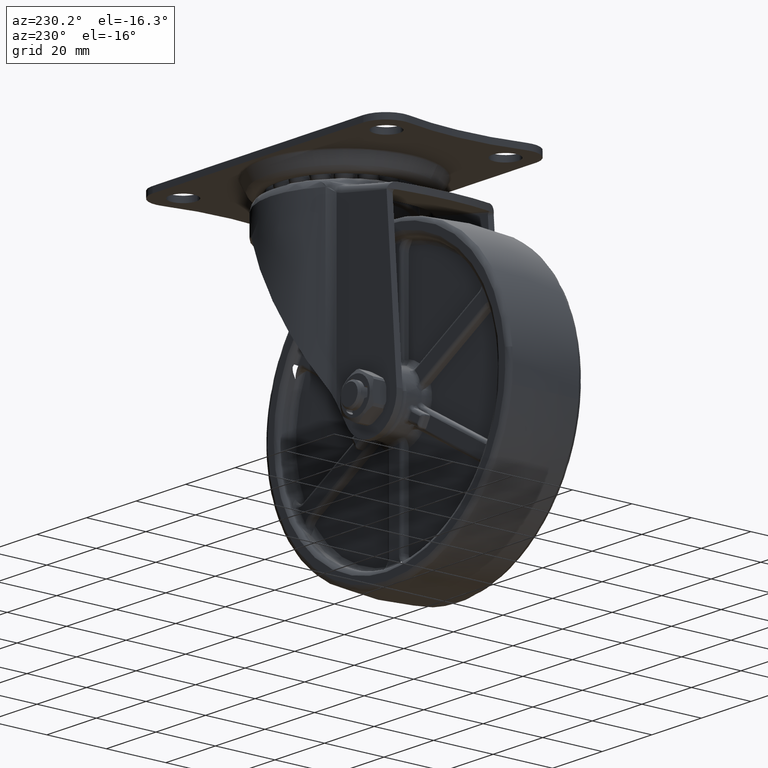
[diagram: clean part render]
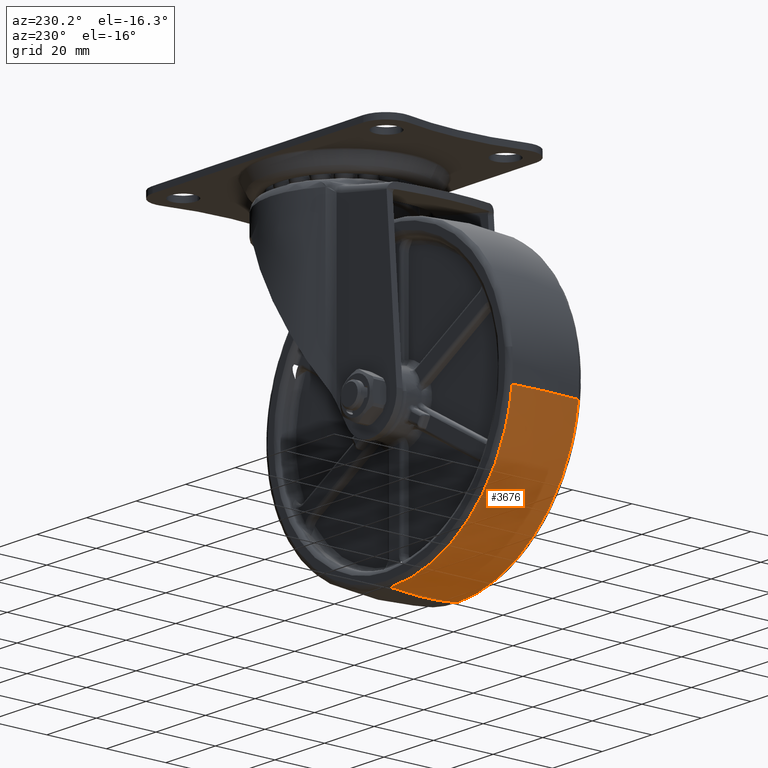
[diagram: same view with one face highlighted and labeled with its STEP entity id]
A machine part, auxiliary view. The second image highlights one B-rep face of the part: STEP entity #3676.
In plain terms, the highlighted face is a freeform B-spline surface patch.
Its self-contained STEP definition (entity closure, byte-faithful):
#2618=CARTESIAN_POINT('',(-32.0,11.167484830604160,-119.374480036664590));
#2619=VERTEX_POINT('',#2618);
#2633=CARTESIAN_POINT('',(-81.044247313738538,11.167491407916470,-75.700965824303069));
#2634=VERTEX_POINT('',#2633);
#2635=CARTESIAN_POINT('',(-32.0,11.167484830604160,-119.374480036664590));
#2636=CARTESIAN_POINT('',(-75.967581495189606,11.167488119260312,-119.374478609331600));
#2637=CARTESIAN_POINT('',(-81.044247313738538,11.167491407916467,-75.700965824303069));
#2645=(BOUNDED_CURVE()B_SPLINE_CURVE(2,(#2635,#2636,#2637),.UNSPECIFIED.,.F.,.U.)B_SPLINE_CURVE_WITH_KNOTS((3,3),(0.500000000000000,0.730000070278203),.UNSPECIFIED.)CURVE()GEOMETRIC_REPRESENTATION_ITEM()RATIONAL_B_SPLINE_CURVE((1.0,0.730538156355587,0.956886256515248))REPRESENTATION_ITEM(''));
#2646=EDGE_CURVE('',#2619,#2634,#2645,.T.);
#2823=CARTESIAN_POINT('',(-32.0,-11.167488677243210,-119.374479604382800));
#2824=VERTEX_POINT('',#2823);
#2930=CARTESIAN_POINT('',(-81.044249517506259,-11.167471308522110,-75.700966427871975));
#2931=VERTEX_POINT('',#2930);
#2947=CARTESIAN_POINT('',(-32.0,-11.167488677243210,-119.374479604382800));
#2948=CARTESIAN_POINT('',(-75.967582307638381,-11.167479992882660,-119.374478523590890));
#2949=CARTESIAN_POINT('',(-81.044249517506259,-11.167471308522110,-75.700966427871975));
#2957=(BOUNDED_CURVE()B_SPLINE_CURVE(2,(#2947,#2948,#2949),.UNSPECIFIED.,.F.,.U.)B_SPLINE_CURVE_WITH_KNOTS((3,3),(0.500000000000000,0.730000069095983),.UNSPECIFIED.)CURVE()GEOMETRIC_REPRESENTATION_ITEM()RATIONAL_B_SPLINE_CURVE((1.0,0.730538157740644,0.956886254188350))REPRESENTATION_ITEM(''));
#2958=EDGE_CURVE('',#2824,#2931,#2957,.T.);
#3608=CARTESIAN_POINT('',(-81.044247313738524,11.167491407916472,-75.700965824303069));
#3609=CARTESIAN_POINT('',(-81.665584297877444,5.601264237661876,-75.773191175565515));
#3610=CARTESIAN_POINT('',(-81.665584287883675,3.382763E-013,-75.773191261526193));
#3611=CARTESIAN_POINT('',(-81.665584277889963,-5.601254092977348,-75.773191347486716));
#3612=CARTESIAN_POINT('',(-81.044249517506259,-11.167471308522105,-75.700966427871975));
#3620=(BOUNDED_CURVE()B_SPLINE_CURVE(2,(#3608,#3609,#3610,#3611,#3612),.UNSPECIFIED.,.F.,.U.)B_SPLINE_CURVE_WITH_KNOTS((3,2,3),(0.444815595098136,0.500000000000000,0.555184306432953),.UNSPECIFIED.)CURVE()GEOMETRIC_REPRESENTATION_ITEM()RATIONAL_B_SPLINE_CURVE((0.931711142107925,0.942737009908395,0.956886118190660,0.942737035155515,0.931711181456197))REPRESENTATION_ITEM(''));
#3621=EDGE_CURVE('',#2634,#2931,#3620,.T.);
#3627=CARTESIAN_POINT('',(-32.000000000000007,11.167484830604165,-119.374480036664610));
#3628=CARTESIAN_POINT('',(-32.000000000000007,5.601260917922247,-120.000000000000010));
#3629=CARTESIAN_POINT('',(-32.0,-3.673819E-015,-120.0));
#3630=CARTESIAN_POINT('',(-32.000000000000007,-5.601262859420757,-120.000000000000060));
#3631=CARTESIAN_POINT('',(-32.000000000000007,-11.167488677243213,-119.374479604382780));
#3639=(BOUNDED_CURVE()B_SPLINE_CURVE(2,(#3627,#3628,#3629,#3630,#3631),.UNSPECIFIED.,.F.,.U.)B_SPLINE_CURVE_WITH_KNOTS((3,2,3),(0.444815627321041,0.500000000000000,0.555184391524025),.UNSPECIFIED.)CURVE()GEOMETRIC_REPRESENTATION_ITEM()RATIONAL_B_SPLINE_CURVE((0.973690742578610,0.985213391905855,1.0,0.985213386856335,0.973690734708806))REPRESENTATION_ITEM(''));
#3640=EDGE_CURVE('',#2619,#2824,#3639,.T.);
#3647=CARTESIAN_POINT('',(-32.0,12.293359890480257,-119.241489824584600));
#3648=CARTESIAN_POINT('',(-32.0,6.170080288650481,-120.0));
#3649=CARTESIAN_POINT('',(-32.0,-3.673819E-015,-120.0));
#3650=CARTESIAN_POINT('',(-32.0,-6.170077209061226,-120.000000000000030));
#3651=CARTESIAN_POINT('',(-32.000000000000007,-12.293353801201517,-119.241490578882890));
#3652=CARTESIAN_POINT('',(-75.849138025146985,12.293359890480255,-119.241489824584620));
#3653=CARTESIAN_POINT('',(-76.524585041347208,6.170080288650483,-120.0));
#3654=CARTESIAN_POINT('',(-76.524585041347194,-3.673819E-015,-120.0));
#3655=CARTESIAN_POINT('',(-76.524585041347180,-6.170077209061225,-119.999999999999990));
#3656=CARTESIAN_POINT('',(-75.849138696843269,-12.293353801201512,-119.241490578882820));
#3657=CARTESIAN_POINT('',(-80.912144953877089,12.293359890480252,-75.685630673512620));
#3658=CARTESIAN_POINT('',(-81.665581939254110,6.170080288650482,-75.773211466353715));
#3659=CARTESIAN_POINT('',(-81.665581939254096,-3.673819E-015,-75.773211466353700));
#3660=CARTESIAN_POINT('',(-81.665581939254096,-6.170077209061224,-75.773211466353700));
#3661=CARTESIAN_POINT('',(-80.912145703130250,-12.293353801201517,-75.685630760607069));
#3669=(BOUNDED_SURFACE()B_SPLINE_SURFACE(2,2,((#3647,#3652,#3657),(#3648,#3653,#3658),(#3649,#3654,#3659),(#3650,#3655,#3660),(#3651,#3656,#3661)),.UNSPECIFIED.,.F.,.F.,.U.)B_SPLINE_SURFACE_WITH_KNOTS((3,2,3),(3,3),(0.0,12.496602079433609,24.993198023047640),(0.0,76.131697817177823),.UNSPECIFIED.)GEOMETRIC_REPRESENTATION_ITEM()RATIONAL_B_SPLINE_SURFACE(((0.971421082618004,0.709660246723667,0.929539348874910),(0.983736203836735,0.718656913688072,0.941323517412949),(1.0,0.730538238691624,0.956886118190660),(0.983736211822243,0.718656919521792,0.941323525054171),(0.971421094711430,0.709660255558377,0.929539360446942)))REPRESENTATION_ITEM('')SURFACE());
#3670=ORIENTED_EDGE('',*,*,#2646,.F.);
#3671=ORIENTED_EDGE('',*,*,#3640,.T.);
#3672=ORIENTED_EDGE('',*,*,#2958,.T.);
#3673=ORIENTED_EDGE('',*,*,#3621,.F.);
#3674=EDGE_LOOP('',(#3670,#3671,#3672,#3673));
#3675=FACE_OUTER_BOUND('',#3674,.T.);
#3676=ADVANCED_FACE('',(#3675),#3669,.T.);